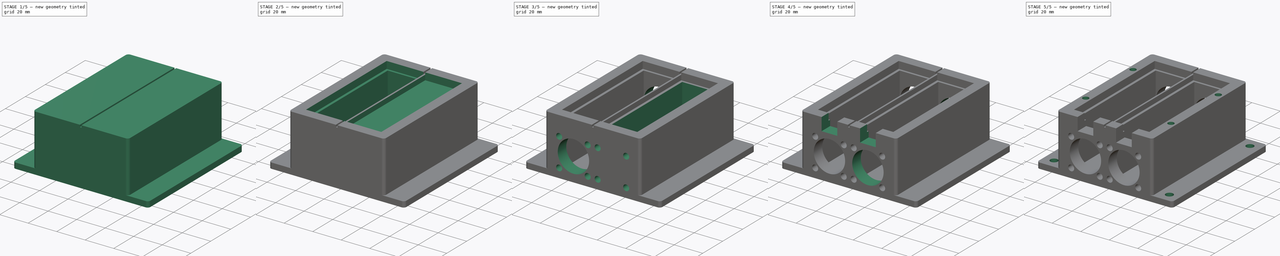
[diagram: build sequence overview — one tinted view per stage of 5, left to right]
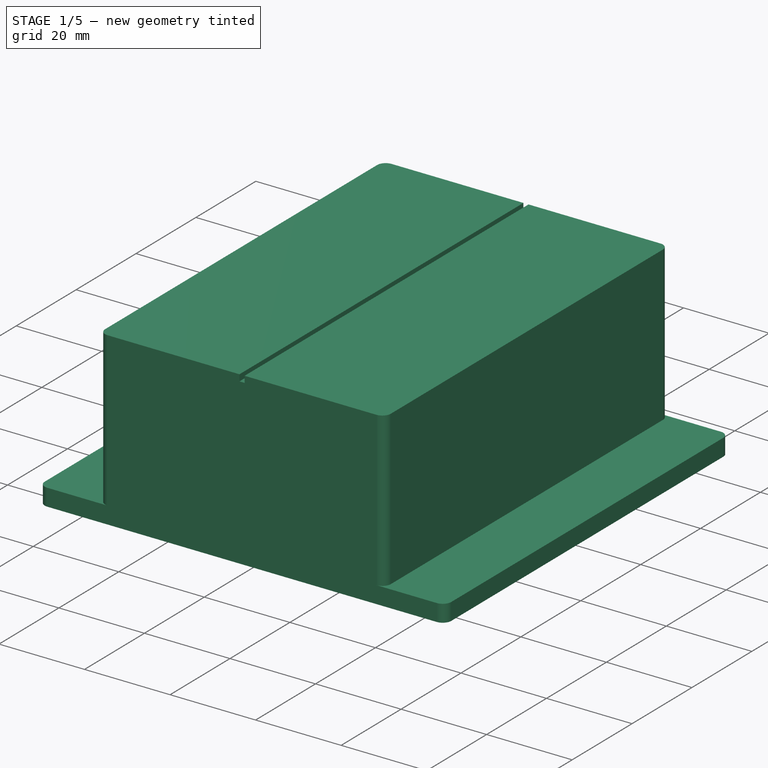
[diagram: stage 1 of 5 — iso view after this stage's code; geometry added in this stage tinted green]
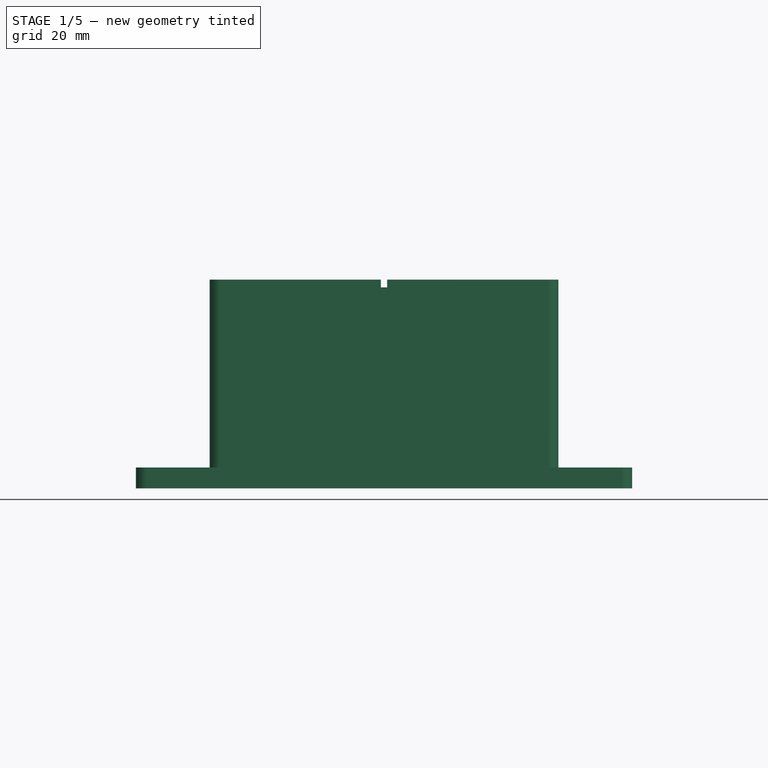
[diagram: stage 1 of 5 — front view after this stage's code; geometry added in this stage tinted green]
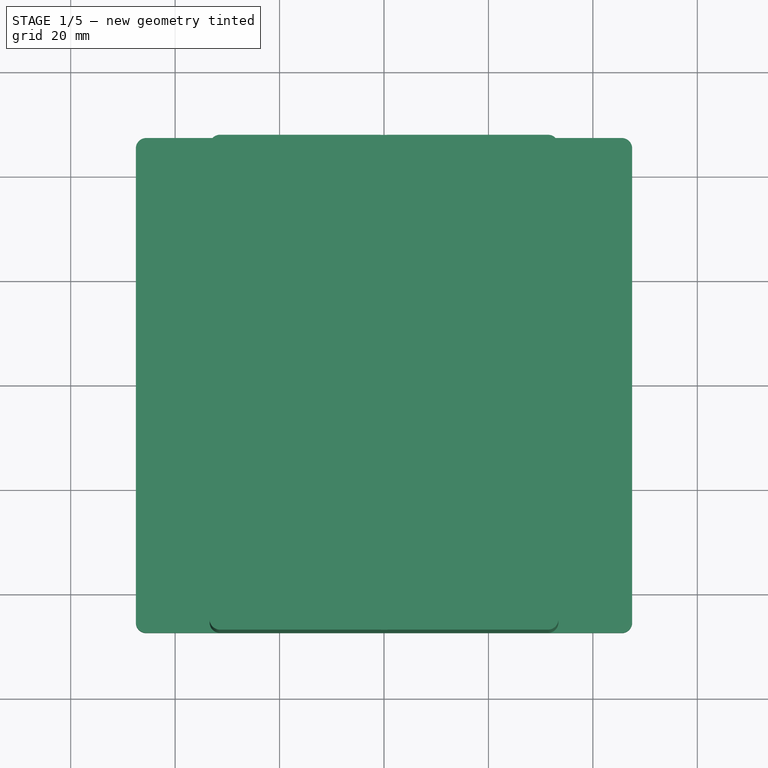
[diagram: stage 1 of 5 — top view after this stage's code; geometry added in this stage tinted green]
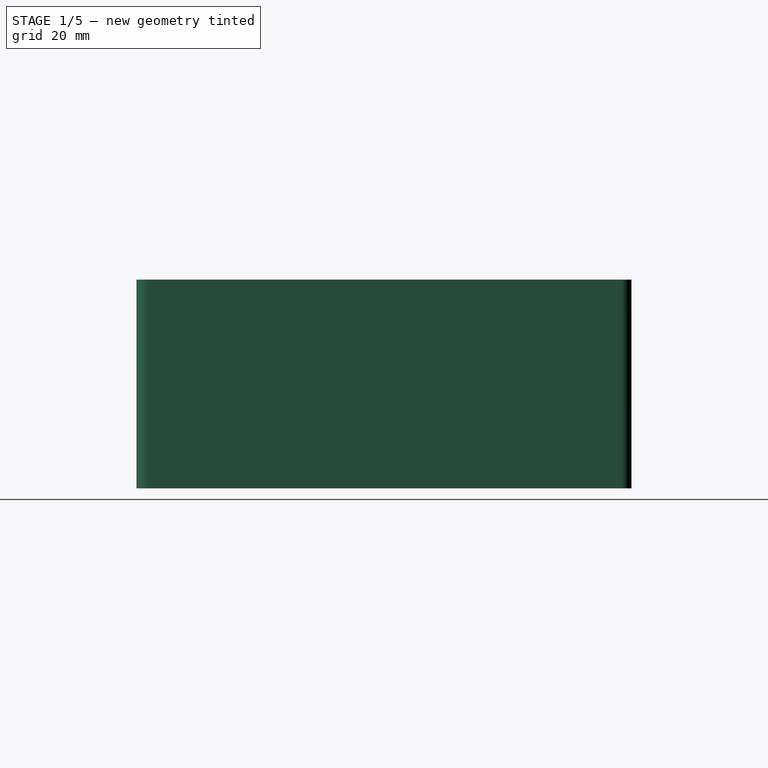
[diagram: stage 1 of 5 — right view after this stage's code; geometry added in this stage tinted green]
FCSTD DOCUMENT  (FreeCAD 1.0R39285 (Git))
Label: pupae_thermal_device_frame
License: All rights reserved
LicenseURL: https://en.wikipedia.org/wiki/All_rights_reserved
objects: Sketcher::SketchObject×10, PartDesign::Pocket×8, PartDesign::Mirrored×7, PartDesign::Plane×3, PartDesign::Pad×2, Spreadsheet::Sheet×1, PartDesign::MultiTransform×1, PartDesign::Body×1
note: 70 computed .brp shape members not serialized (recipe doc carries the construction recipe); baked Part::Feature solids carry a one-line shape summary decoded from their .brp

FEATURE [Spreadsheet::Sheet] Spreadsheet
  cells = A2='Design Parameters; A3='wall_thickness; B3(wall_thickness)==7 mm; A4='floor_thickness; B4(floor_thickness)==4 mm; A6='thermal_plate_length; B6(thermal_plate_length)==80 mm; A7='thermal_plate_width; B7(thermal_plate_width)==25 mm; A8='thermal_plate_height; B8(thermal_plate_height)==5 mm; A9='thermal_plate_side_margin; B9(thermal_plate_side_margin)==0.4 mm; A10='thermal_plate_pocket_length; B10(thermal_plate_pocket_length)==thermal_plate_length + 2 * thermal_plate_side_margin; A11='thermal_plate_pocket_width; B11(thermal_plate_pocket_width)==thermal_plate_width + 2 * thermal_plate_side_margin; A12='thermal_plate_pocket_depth; B12(thermal_plate_pocket_depth)==1 * thermal_plate_height; A14='peltier_and_heatsink_length; B14(peltier_and_heatsink_length)==76.5 mm; A15='peltier_and_heatsink_width; B15(peltier_and_heatsink_width)==21 mm; A16='peltier_and_heatsink_height; B16(peltier_and_heatsink_height)==14 mm; A17='peltier_and_heatsink_side_margin; B17(peltier_and_heatsink_side_margin)==0.6 mm; A18='peltier_cable_cutout_width; B18(peltier_cable_cutout_width)==12 mm; A19='peltier_height; B19(peltier_height)==4 mm; A21='pupae_channel_width; B21(pupae_channel_width)==1.2 mm; A22='pupae_channel_depth; B22(pupae_channel_depth)==1.5 mm; A23='pupae_channel_pocket_depth; B23(pupae_channel_pocket_depth)==pupae_channel_depth + thermal_plate_pocket_depth - thermal_plate_height; A25='fan_outer_width; B25(fan_outer_width)==25 mm; A26='fan_outer_height; B26(fan_outer_height)==25 mm; A27='fan_cable_clearance_height_margin; B27(fan_cable_clearance_height_margin)==2 mm; A28='fan_cable_clearance_width; B28(fan_cable_clearance_width)==11 mm; A29='fan_mount_hole_widthwise_spacing; B29(fan_mount_hole_widthwise_spacing)==20 mm; A30='fan_mount_hole_heightwise_spacing; B30(fan_mount_hole_heightwise_spacing)==20 mm; A31='fan_mount_hole_diameter; B31(fan_mount_hole_diameter)==3 mm; A32='fan_flow_hole_diameter; B32(fan_flow_hole_diameter)==22 mm; A33='fan_offset_from_top; B33(fan_offset_from_top)==thermal_plate_pocket_depth + peltier_height + fan_cable_clearance_height_margin; A34='fan_thread_insert_hole_diameter; B34(fan_thread_insert_hole_diameter)==0.165 in; A35='fan_cable_clearance_pocket_width; B35(fan_cable_clearance_pocket_width)==fan_cable_clearance_width; A36='fan_cable_clearance_pocket_depth; B36(fan_cable_clearance_pocket_depth)==thermal_plate_pocket_depth + peltier_height; A38='base_outside_length; B38(base_outside_length)==max(thermal_plate_pocket_length; peltier_and_heatsink_length) + 2 * wall_thickness; A39='base_outside_width; B39(base_outside_width)==2 * wall_thickness + 2 * max(thermal_plate_pocket_width; peltier_and_heatsink_width) + pupae_channel_width; A40='base_outside_height; B40(base_outside_height)==thermal_plate_pocket_depth + peltier_height + fan_cable_clearance_height_margin + fan_outer_height + floor_thickness; A41='base_outside_corner_fillet_radius; B41(base_outside_corner_fillet_radius)==2 mm; A43='thermal_plate_pocket_bottom_datum_plane_offset; B43(thermal_plate_pocket_bottom_datum_plane_offset)==base_outside_height - thermal_plate_pocket_depth; A45='peltier_and_heatsink_pocket_length; B45(peltier_and_heatsink_pocket_length)==peltier_and_heatsink_length + 2 * peltier_and_heatsink_side_margin; A46='peltier_and_heatsink_pocket_width; B46(peltier_and_heatsink_pocket_width)==peltier_and_heatsink_width + 2 * peltier_and_heatsink_side_margin; A47='peltier_and_heatsink_pocket_depth; B47(peltier_and_heatsink_pocket_depth)==base_outside_height - thermal_plate_pocket_depth - floor_thickness; A49='front_datumplate_offset; B49(front_datumplate_offset)==0.5 * base_outside_length; A51='base_mount_screw_washer_diameter; B51(base_mount_screw_washer_diameter)==0.438 in; A52='base_mount_screw_washer_margin; B52(base_mount_screw_washer_margin)==1.5 mm; A53='base_mount_flange_width; B53(base_mount_flange_width)==2 * base_mount_screw_washer_diameter + 4 * base_mount_screw_washer_margin + base_outside_width; A54='base_mount_flange_length; B54(base_mount_flange_length)==base_outside_length; A55='base_mount_flange_thickness; B55(base_mount_flange_thickness)==floor_thickness; A56='base_mount_flange_fillet_radius; B56(base_mount_flange_fillet_radius)==2 mm; A57='base_mount_flange_hole_lengthwise_separation; B57(base_mount_flange_hole_lengthwise_separation)==base_mount_flange_length - (base_mount_screw_washer_diameter + 2 * base_mount_screw_washer_margin); A58='base_mount_flange_hole_widthwise_separation; B58(base_mount_flange_hole_widthwise_separation)==base_mount_flange_width - (base_mount_screw_washer_diameter + 2 * base_mount_screw_washer_margin); A59='base_mount_flange_hole_diameter; B59(base_mount_flange_hole_diameter)==0.205 in; A61='top_mount_hole_insert_diameter; B61(top_mount_hole_insert_diameter)==0.165 in; A62='top_mount_hole_insert_depth; B62(top_mount_hole_insert_depth)==7 mm
FEATURE [Sketcher::SketchObject] Sketch  label="BaseSketch"
  ArcFitTolerance = 1e-06
  AttachmentSupport = -> [XY_Plane]
  FullyConstrained = true
  MakeInternals = false
  MapMode = 5
  expr: Constraints[19] = Spreadsheet.base_outside_corner_fillet_radius
  expr: Constraints[21] = Spreadsheet.base_outside_length
  expr: Constraints[22] = Spreadsheet.base_outside_width
  sketch-geometry (10):
    g0: LineSegment StartX=-33.4 StartY=45.4 StartZ=0 EndX=-33.4 EndY=-45.4 EndZ=0
    g1: LineSegment StartX=-31.4 StartY=-47.4 StartZ=0 EndX=31.4 EndY=-47.4 EndZ=0
    g2: LineSegment StartX=33.4 StartY=-45.4 StartZ=0 EndX=33.4 EndY=45.4 EndZ=0
    g3: LineSegment StartX=31.4 StartY=47.4 StartZ=0 EndX=-31.4 EndY=47.4 EndZ=0
    g4: ArcOfCircle CenterX=-31.4 CenterY=45.4 CenterZ=0 NormalX=0 NormalY=0 NormalZ=1 AngleXU=0 Radius=2 StartAngle=1.5708 EndAngle=3.14159
    g5: ArcOfCircle CenterX=-31.4 CenterY=-45.4 CenterZ=0 NormalX=0 NormalY=0 NormalZ=1 AngleXU=0 Radius=2 StartAngle=3.14159 EndAngle=4.71239
    g6: ArcOfCircle CenterX=31.4 CenterY=-45.4 CenterZ=0 NormalX=0 NormalY=0 NormalZ=1 AngleXU=0 Radius=2 StartAngle=4.71239 EndAngle=6.28319
    g7: ArcOfCircle CenterX=31.4 CenterY=45.4 CenterZ=0 NormalX=0 NormalY=0 NormalZ=1 AngleXU=0 Radius=2 StartAngle=9.45e-14 EndAngle=1.5708
    g8: GeomPoint [constr] X=-33.4 Y=47.4 Z=0
    g9: GeomPoint [constr] X=33.4 Y=-47.4 Z=0
  constraints (23):
    c: Tangent(g0,g4) = -1.5708
    c: Tangent(g0,g5) = -1.5708
    c: Tangent(g1,g5) = -1.5708
    c: Tangent(g1,g6) = -1.5708
    c: Tangent(g2,g6) = -1.5708
    c: Tangent(g2,g7) = -1.5708
    c: Tangent(g3,g7) = -1.5708
    c: Tangent(g3,g4) = -1.5708
    c: Vertical(g0)
    c: Vertical(g2)
    c: Horizontal(g1)
    c: Horizontal(g3)
    c: Equal(g4,g5)
    c: Equal(g5,g6)
    c: Equal(g6,g7)
    c: PointOnObject(g8,g0)
    c: PointOnObject(g8,g3)
    c: PointOnObject(g9,g1)
    c: PointOnObject(g9,g2)
    c: Radius(g5) = 2
    c: Symmetric(g4,g6,g-1)
    c: DistanceY(g1,g3) = 94.8
    c: DistanceX(g0,g2) = 66.8
FEATURE [PartDesign::Pad] Pad  label="BasePad"
  Direction = (0,0,1)
  Length = 40
  Length2 = 10
  Profile = -> Sketch
  ReferenceAxis = -> Sketch [N_Axis]
  Refine = true
  Suppressed = false
  Type = 0
  expr: Length = Spreadsheet.base_outside_height
FEATURE [PartDesign::Plane] DatumPlane  label="TopDatumPlane"
  AttachmentOffset = pos=(0,0,40) rot=(0,0,1;0rad)
  AttachmentSupport = -> [XY_Plane]
  Length = 114.035
  MapMode = 5
  Placement = pos=(0,0,40) rot=(0,0,1;0rad)
  ResizeMode = 0
  Width = 113.785
  expr: .AttachmentOffset.Base.z = Spreadsheet.base_outside_height
FEATURE [Sketcher::SketchObject] Sketch002  label="PupaeChannelSketch"
  ArcFitTolerance = 1e-06
  AttachmentSupport = -> [DatumPlane]
  FullyConstrained = true
  MakeInternals = false
  MapMode = 5
  Placement = pos=(0,0,40) rot=(0,0,1;0rad)
  expr: Constraints[10] = Spreadsheet.pupae_channel_width
  expr: Constraints[11] = Spreadsheet.base_outside_length
  sketch-geometry (5):
    g0: LineSegment StartX=-0.6 StartY=47.4 StartZ=0 EndX=-0.6 EndY=-47.4 EndZ=0
    g1: LineSegment StartX=-0.6 StartY=-47.4 StartZ=0 EndX=0.6 EndY=-47.4 EndZ=0
    g2: LineSegment StartX=0.6 StartY=-47.4 StartZ=0 EndX=0.6 EndY=47.4 EndZ=0
    g3: LineSegment StartX=0.6 StartY=47.4 StartZ=0 EndX=-0.6 EndY=47.4 EndZ=0
    g4: GeomPoint [constr] X=0 Y=0 Z=0
  constraints (12):
    c: Coincident(g0,g1)
    c: Coincident(g1,g2)
    c: Coincident(g2,g3)
    c: Coincident(g3,g0)
    c: Vertical(g0)
    c: Vertical(g2)
    c: Horizontal(g1)
    c: Horizontal(g3)
    c: Symmetric(g2,g0,g4)
    c: Coincident(g4,g-1)
    c: DistanceX(g1,g1) = 1.2
    c: DistanceY(g2,g2) = 94.8
FEATURE [Sketcher::SketchObject] Sketch003  label="ThermalPlatePocketSketch"
  ArcFitTolerance = 1e-06
  AttachmentSupport = -> [DatumPlane]
  FullyConstrained = true
  MakeInternals = false
  MapMode = 5
  Placement = pos=(0,0,40) rot=(0,0,1;0rad)
  expr: Constraints[12] = Spreadsheet.thermal_plate_pocket_width
  expr: Constraints[13] = Spreadsheet.thermal_plate_pocket_length
  expr: Constraints[2] = Spreadsheet.pupae_channel_width
  sketch-geometry (5):
    g0: LineSegment [constr] StartX=-0.6 StartY=0 StartZ=0 EndX=0.6 EndY=0 EndZ=0
    g1: LineSegment StartX=-26.4 StartY=40.4 StartZ=0 EndX=-26.4 EndY=-40.4 EndZ=0
    g2: LineSegment StartX=-26.4 StartY=-40.4 StartZ=0 EndX=-0.6 EndY=-40.4 EndZ=0
    g3: LineSegment StartX=-0.6 StartY=-40.4 StartZ=0 EndX=-0.6 EndY=40.4 EndZ=0
    g4: LineSegment StartX=-0.6 StartY=40.4 StartZ=0 EndX=-26.4 EndY=40.4 EndZ=0
  constraints (14):
    c: Symmetric(g0,g0,g-1)
    c: Horizontal(g0)
    c: Distance(g0,g0) = 1.2
    c: Coincident(g1,g2)
    c: Coincident(g2,g3)
    c: Coincident(g3,g4)
    c: Coincident(g4,g1)
    c: Vertical(g1)
    c: Vertical(g3)
    c: Horizontal(g2)
    c: Horizontal(g4)
    c: Symmetric(g3,g2,g0)
    c: Distance(g4,g4) = 25.8
    c: DistanceY(g1,g1) = 80.8
FEATURE [PartDesign::Plane] DatumPlane001  label="ThermPlatePocketBottomDatumPlane"
  AttachmentOffset = pos=(0,0,35) rot=(0,0,1;0rad)
  AttachmentSupport = -> [XY_Plane]
  Length = 114.035
  MapMode = 5
  Placement = pos=(0,0,35) rot=(0,0,1;0rad)
  ResizeMode = 0
  Width = 113.785
  expr: .AttachmentOffset.Base.z = Spreadsheet.thermal_plate_pocket_bottom_datum_plane_offset
FEATURE [Sketcher::SketchObject] Sketch004  label="PeltierAndHeatSinkPocketSketch"
  ArcFitTolerance = 1e-06
  AttachmentSupport = -> [DatumPlane001]
  FullyConstrained = true
  MakeInternals = false
  MapMode = 5
  Placement = pos=(0,0,35) rot=(0,0,1;0rad)
  expr: Constraints[13] = Spreadsheet.thermal_plate_pocket_width
  expr: Constraints[14] = Spreadsheet.thermal_plate_pocket_length
  expr: Constraints[25] = Spreadsheet.peltier_and_heatsink_pocket_width
  expr: Constraints[26] = Spreadsheet.peltier_and_heatsink_pocket_length
  expr: Constraints[2] = Spreadsheet.pupae_channel_width
  sketch-geometry (11):
    g0: LineSegment [constr] StartX=-0.6 StartY=0 StartZ=0 EndX=0.6 EndY=0 EndZ=0
    g1: LineSegment [constr] StartX=-26.4 StartY=40.4 StartZ=0 EndX=-26.4 EndY=-40.4 EndZ=0
    g2: LineSegment [constr] StartX=-26.4 StartY=-40.4 StartZ=0 EndX=-0.6 EndY=-40.4 EndZ=0
    g3: LineSegment [constr] StartX=-0.6 StartY=-40.4 StartZ=0 EndX=-0.6 EndY=40.4 EndZ=0
    g4: LineSegment [constr] StartX=-0.6 StartY=40.4 StartZ=0 EndX=-26.4 EndY=40.4 EndZ=0
    g5: GeomPoint [constr] X=-13.5 Y=3.1e-15 Z=0
    g6: LineSegment StartX=-24.6 StartY=38.85 StartZ=0 EndX=-24.6 EndY=-38.85 EndZ=0
    g7: LineSegment StartX=-24.6 StartY=-38.85 StartZ=0 EndX=-2.4 EndY=-38.85 EndZ=0
    g8: LineSegment StartX=-2.4 StartY=-38.85 StartZ=0 EndX=-2.4 EndY=38.85 EndZ=0
    g9: LineSegment StartX=-2.4 StartY=38.85 StartZ=0 EndX=-24.6 EndY=38.85 EndZ=0
    g10: GeomPoint [constr] X=-13.5 Y=3.1e-15 Z=0
  constraints (27):
    c: Symmetric(g0,g0,g-1)
    c: Horizontal(g0)
    c: DistanceX(g0,g0) = 1.2
    c: Coincident(g1,g2)
    c: Coincident(g2,g3)
    c: Coincident(g3,g4)
    c: Coincident(g4,g1)
    c: Vertical(g1)
    c: Vertical(g3)
    c: Horizontal(g2)
    c: Horizontal(g4)
    c: Symmetric(g3,g1,g5)
    c: Symmetric(g3,g2,g0)
    c: DistanceX(g2,g2) = 25.8
    c: DistanceY(g1,g1) = 80.8
    c: Coincident(g6,g7)
    c: Coincident(g7,g8)
    c: Coincident(g8,g9)
    c: Coincident(g9,g6)
    c: Vertical(g6)
    c: Vertical(g8)
    c: Horizontal(g7)
    c: Horizontal(g9)
    c: Symmetric(g8,g6,g10)
    c: Coincident(g10,g5)
    c: DistanceX(g7,g7) = 22.2
    c: DistanceY(g6,g6) = 77.7
FEATURE [PartDesign::Plane] DatumPlane002  label="FrontDatumPlane"
  AttachmentOffset = pos=(0,0,47.4) rot=(0,0,1;0rad)
  AttachmentSupport = -> [XZ_Plane]
  Length = 110.771
  MapMode = 5
  Placement = pos=(0,-47.4,1.05e-14) rot=(1,0,0;1.5708rad)
  ResizeMode = 0
  Width = 80.7204
  expr: .AttachmentOffset.Base.z = Spreadsheet.front_datumplate_offset
FEATURE [Sketcher::SketchObject] Sketch005  label="FanMountSketch"
  ArcFitTolerance = 1e-06
  AttachmentSupport = -> [DatumPlane002]
  FullyConstrained = true
  MakeInternals = false
  MapMode = 5
  Placement = pos=(0,-47.4,1.05e-14) rot=(1,0,0;1.5708rad)
  expr: Constraints[22] = Spreadsheet.fan_outer_width
  expr: Constraints[23] = Spreadsheet.fan_outer_height
  expr: Constraints[2] = Spreadsheet.base_outside_height
  expr: Constraints[34] = Spreadsheet.fan_mount_hole_widthwise_spacing
  expr: Constraints[35] = Spreadsheet.fan_mount_hole_heightwise_spacing
  expr: Constraints[43] = Spreadsheet.fan_thread_insert_hole_diameter
  expr: Constraints[4] = Spreadsheet.fan_offset_from_top
  expr: Constraints[6] = Spreadsheet.pupae_channel_width
  expr: Constraints[9] = Spreadsheet.thermal_plate_pocket_width
  sketch-geometry (19):
    g0: LineSegment [constr] StartX=0 StartY=40 StartZ=0 EndX=0 EndY=0 EndZ=0
    g1: GeomPoint [constr] X=0 Y=29 Z=0
    g2: LineSegment [constr] StartX=-0.6 StartY=29 StartZ=0 EndX=0.6 EndY=29 EndZ=0
    g3: LineSegment [constr] StartX=-26.4 StartY=29 StartZ=0 EndX=-0.6 EndY=29 EndZ=0
    g4: GeomPoint [constr] X=-13.5 Y=29 Z=0
    g5: LineSegment [constr] StartX=-26 StartY=29 StartZ=0 EndX=-26 EndY=4 EndZ=0
    g6: LineSegment [constr] StartX=-26 StartY=4 StartZ=0 EndX=-1 EndY=4 EndZ=0
    g7: LineSegment [constr] StartX=-1 StartY=4 StartZ=0 EndX=-1 EndY=29 EndZ=0
    g8: LineSegment [constr] StartX=-1 StartY=29 StartZ=0 EndX=-26 EndY=29 EndZ=0
    g9: GeomPoint [constr] X=-13.5 Y=16.5 Z=0
    g10: LineSegment [constr] StartX=-23.5 StartY=26.5 StartZ=0 EndX=-23.5 EndY=6.5 EndZ=0
    g11: LineSegment [constr] StartX=-23.5 StartY=6.5 StartZ=0 EndX=-3.5 EndY=6.5 EndZ=0
    g12: LineSegment [constr] StartX=-3.5 StartY=6.5 StartZ=0 EndX=-3.5 EndY=26.5 EndZ=0
    g13: LineSegment [constr] StartX=-3.5 StartY=26.5 StartZ=0 EndX=-23.5 EndY=26.5 EndZ=0
    g14: GeomPoint [constr] X=-13.5 Y=16.5 Z=0
    g15: Circle CenterX=-23.5 CenterY=26.5 CenterZ=0 NormalX=0 NormalY=0 NormalZ=1 AngleXU=0 Radius=2.0955
    g16: Circle CenterX=-3.5 CenterY=26.5 CenterZ=0 NormalX=0 NormalY=0 NormalZ=1 AngleXU=0 Radius=2.0955
    g17: Circle CenterX=-23.5 CenterY=6.5 CenterZ=0 NormalX=0 NormalY=0 NormalZ=1 AngleXU=0 Radius=2.0955
    g18: Circle CenterX=-3.5 CenterY=6.5 CenterZ=0 NormalX=0 NormalY=0 NormalZ=1 AngleXU=0 Radius=2.0955
  constraints (44):
    c: Vertical(g0)
    c: Coincident(g0,g-1)
    c: DistanceY(g0,g0) = 40
    c: PointOnObject(g1,g0)
    c: Distance(g0,g1) = 11
    c: Symmetric(g2,g2,g0)
    c: DistanceX(g2,g2) = 1.2
    c: Horizontal(g3)
    c: Coincident(g3,g2)
    c: DistanceX(g3,g3) = 25.8
    c: Symmetric(g2,g3,g4)
    c: Coincident(g5,g6)
    c: Coincident(g6,g7)
    c: Coincident(g7,g8)
    c: Coincident(g8,g5)
    c: Vertical(g5)
    c: Vertical(g7)
    c: Horizontal(g6)
    c: Horizontal(g8)
    c: Symmetric(g7,g5,g9)
    c: Symmetric(g5,g7,g4)
    c: PointOnObject(g1,g2)
    c: DistanceX(g6,g6) = 25
    c: DistanceY(g5,g5) = 25
    c: Coincident(g10,g11)
    c: Coincident(g11,g12)
    c: Coincident(g12,g13)
    c: Coincident(g13,g10)
    c: Vertical(g10)
    c: Vertical(g12)
    c: Horizontal(g11)
    c: Horizontal(g13)
    c: Symmetric(g12,g10,g14)
    c: Coincident(g14,g9)
    c: DistanceX(g11,g11) = 20
    c: DistanceY(g10,g10) = 20
    c: Coincident(g15,g10)
    c: Coincident(g16,g12)
    c: Coincident(g17,g10)
    c: Coincident(g18,g11)
    c: Equal(g17,g18)
    c: Equal(g18,g15)
    c: Equal(g15,g16)
    c: Diameter(g16) = 4.191
FEATURE [Sketcher::SketchObject] Sketch006  label="FanFlowHoleSketch"
  ArcFitTolerance = 1e-06
  AttachmentSupport = -> [DatumPlane002]
  FullyConstrained = true
  MakeInternals = false
  MapMode = 5
  Placement = pos=(0,-47.4,1.05e-14) rot=(1,0,0;1.5708rad)
  expr: Constraints[10] = Spreadsheet.thermal_plate_pocket_width
  expr: Constraints[22] = Spreadsheet.fan_outer_height
  expr: Constraints[23] = Spreadsheet.fan_outer_width
  expr: Constraints[25] = Spreadsheet.fan_flow_hole_diameter
  expr: Constraints[2] = Spreadsheet.base_outside_height
  expr: Constraints[4] = Spreadsheet.fan_offset_from_top
  expr: Constraints[7] = Spreadsheet.pupae_channel_width
  sketch-geometry (11):
    g0: LineSegment [constr] StartX=0 StartY=40 StartZ=0 EndX=0 EndY=0 EndZ=0
    g1: GeomPoint [constr] X=0 Y=29 Z=0
    g2: LineSegment [constr] StartX=0.6 StartY=29 StartZ=0 EndX=-0.6 EndY=29 EndZ=0
    g3: LineSegment [constr] StartX=-26.4 StartY=29 StartZ=0 EndX=-0.6 EndY=29 EndZ=0
    g4: GeomPoint [constr] X=-13.5 Y=29 Z=0
    g5: LineSegment [constr] StartX=-26 StartY=29 StartZ=0 EndX=-26 EndY=4 EndZ=0
    g6: LineSegment [constr] StartX=-26 StartY=4 StartZ=0 EndX=-1 EndY=4 EndZ=0
    g7: LineSegment [constr] StartX=-1 StartY=4 StartZ=0 EndX=-1 EndY=29 EndZ=0
    g8: LineSegment [constr] StartX=-1 StartY=29 StartZ=0 EndX=-26 EndY=29 EndZ=0
    g9: GeomPoint [constr] X=-13.5 Y=16.5 Z=0
    g10: Circle CenterX=-13.5 CenterY=16.5 CenterZ=0 NormalX=0 NormalY=0 NormalZ=1 AngleXU=0 Radius=11
  constraints (26):
    c: Vertical(g0)
    c: Coincident(g0,g-1)
    c: DistanceY(g0,g0) = 40
    c: PointOnObject(g1,g0)
    c: Distance(g0,g1) = 11
    c: Horizontal(g2)
    c: Symmetric(g2,g2,g1)
    c: Distance(g2,g2) = 1.2
    c: Horizontal(g3)
    c: Coincident(g2,g3)
    c: DistanceX(g3,g3) = 25.8
    c: Symmetric(g3,g2,g4)
    c: Coincident(g5,g6)
    c: Coincident(g6,g7)
    c: Coincident(g7,g8)
    c: Coincident(g8,g5)
    c: Vertical(g5)
    c: Vertical(g7)
    c: Horizontal(g6)
    c: Horizontal(g8)
    c: Symmetric(g7,g5,g9)
    c: Symmetric(g5,g7,g4)
    c: DistanceY(g5,g5) = 25
    c: DistanceX(g6,g6) = 25
    c: Coincident(g10,g9)
    c: Diameter(g10) = 22
FEATURE [Sketcher::SketchObject] Sketch007  label="BaseMountFlangeSketch"
  ArcFitTolerance = 1e-06
  AttachmentSupport = -> [XY_Plane]
  FullyConstrained = true
  MakeInternals = false
  MapMode = 5
  expr: Constraints[19] = Spreadsheet.base_mount_flange_fillet_radius
  expr: Constraints[20] = Spreadsheet.base_mount_flange_width
  expr: Constraints[21] = Spreadsheet.base_mount_flange_length
  sketch-geometry (10):
    g0: LineSegment StartX=-47.5252 StartY=45.4 StartZ=0 EndX=-47.5252 EndY=-45.4 EndZ=0
    g1: LineSegment StartX=-45.5252 StartY=-47.4 StartZ=0 EndX=45.5252 EndY=-47.4 EndZ=0
    g2: LineSegment StartX=47.5252 StartY=-45.4 StartZ=0 EndX=47.5252 EndY=45.4 EndZ=0
    g3: LineSegment StartX=45.5252 StartY=47.4 StartZ=0 EndX=-45.5252 EndY=47.4 EndZ=0
    g4: ArcOfCircle CenterX=-45.5252 CenterY=45.4 CenterZ=0 NormalX=0 NormalY=0 NormalZ=1 AngleXU=0 Radius=2 StartAngle=1.5708 EndAngle=3.14159
    g5: ArcOfCircle CenterX=-45.5252 CenterY=-45.4 CenterZ=0 NormalX=0 NormalY=0 NormalZ=1 AngleXU=0 Radius=2 StartAngle=3.14159 EndAngle=4.71239
    g6: ArcOfCircle CenterX=45.5252 CenterY=-45.4 CenterZ=0 NormalX=0 NormalY=0 NormalZ=1 AngleXU=0 Radius=2 StartAngle=4.71239 EndAngle=6.28319
    g7: ArcOfCircle CenterX=45.5252 CenterY=45.4 CenterZ=0 NormalX=0 NormalY=0 NormalZ=1 AngleXU=0 Radius=2 StartAngle=9.22e-14 EndAngle=1.5708
    g8: GeomPoint [constr] X=-47.5252 Y=47.4 Z=0
    g9: GeomPoint [constr] X=47.5252 Y=-47.4 Z=0
  constraints (23):
    c: Tangent(g0,g4) = -1.5708
    c: Tangent(g0,g5) = -1.5708
    c: Tangent(g1,g5) = -1.5708
    c: Tangent(g1,g6) = -1.5708
    c: Tangent(g2,g6) = -1.5708
    c: Tangent(g2,g7) = -1.5708
    c: Tangent(g3,g7) = -1.5708
    c: Tangent(g3,g4) = -1.5708
    c: Vertical(g0)
    c: Vertical(g2)
    c: Horizontal(g1)
    c: Horizontal(g3)
    c: Equal(g4,g5)
    c: Equal(g5,g6)
    c: Equal(g6,g7)
    c: PointOnObject(g8,g0)
    c: PointOnObject(g8,g3)
    c: PointOnObject(g9,g1)
    c: PointOnObject(g9,g2)
    c: Radius(g5) = 2
    c: DistanceX(g0,g2) = 95.0504
    c: DistanceY(g1,g3) = 94.8
    c: Symmetric(g4,g6,g-1)
FEATURE [PartDesign::Pad] Pad001  label="BaseMountFlangePad"
  BaseFeature = -> Pad
  Direction = (0,0,1)
  Length = 4
  Length2 = 10
  Profile = -> Sketch007
  ReferenceAxis = -> Sketch007 [N_Axis]
  Refine = true
  Suppressed = false
  Type = 0
  expr: Length = Spreadsheet.base_mount_flange_thickness
FEATURE [PartDesign::Pocket] Pocket001  label="PupaeChannelPocket"
  BaseFeature = -> Pad001
  Direction = (0,0,-1)
  Length = 1.5
  Length2 = 5
  Profile = -> Sketch002
  ReferenceAxis = -> Sketch002 [N_Axis]
  Refine = true
  Suppressed = false
  Type = 0
  expr: Length = Spreadsheet.pupae_channel_pocket_depth
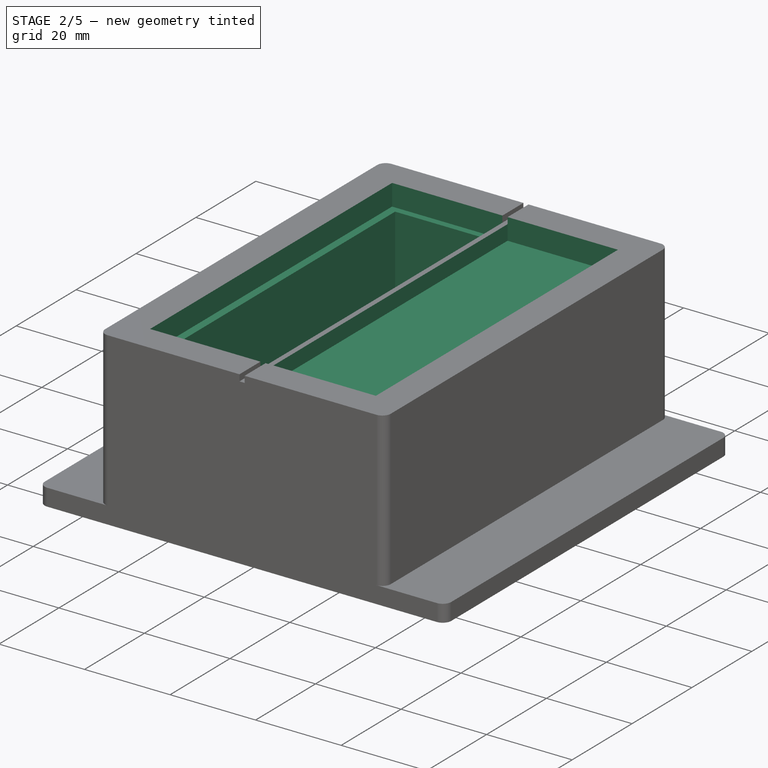
[diagram: stage 2 of 5 — iso view after this stage's code; geometry added in this stage tinted green]
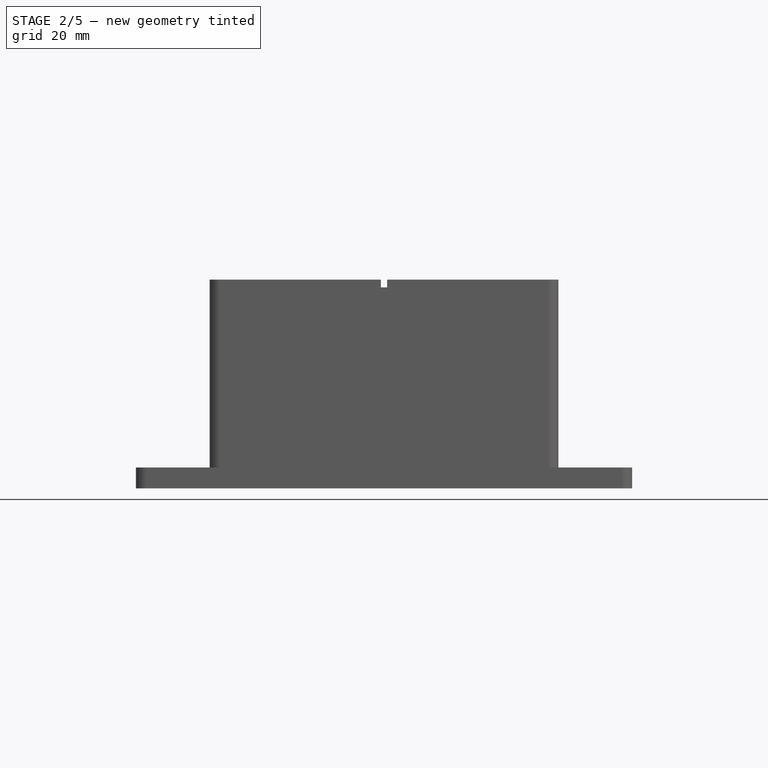
[diagram: stage 2 of 5 — front view after this stage's code; geometry added in this stage tinted green]
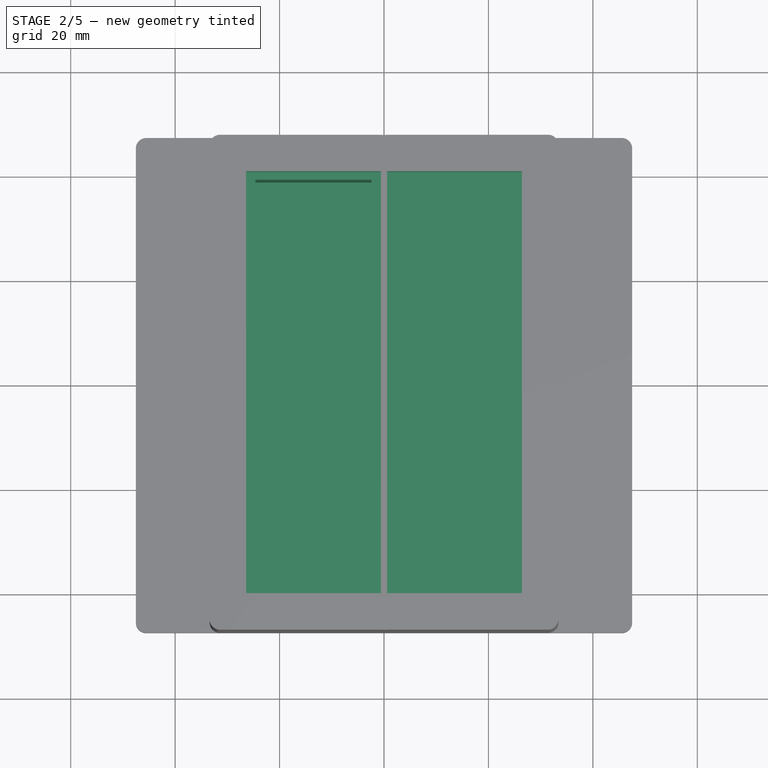
[diagram: stage 2 of 5 — top view after this stage's code; geometry added in this stage tinted green]
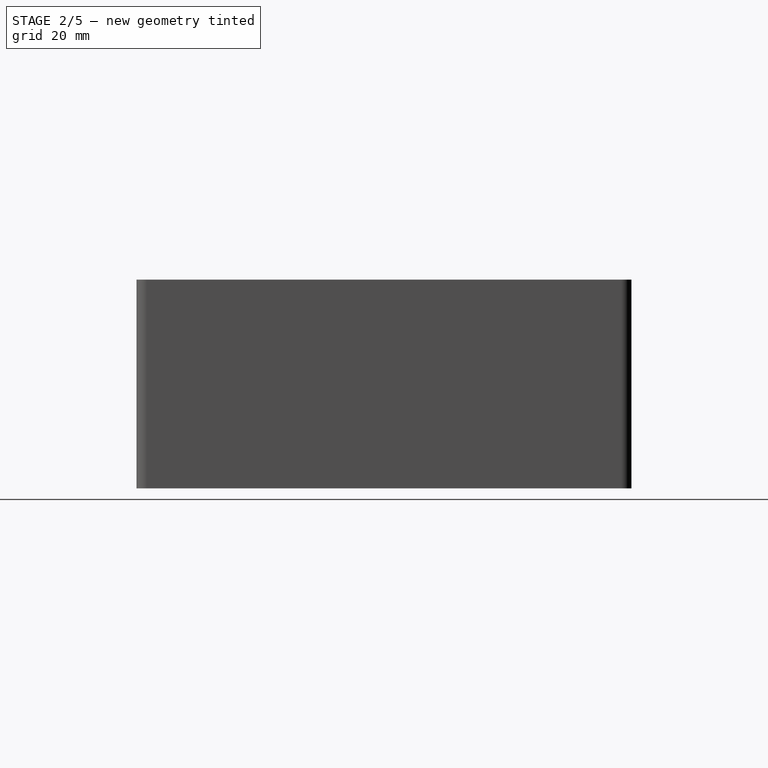
[diagram: stage 2 of 5 — right view after this stage's code; geometry added in this stage tinted green]
FEATURE [PartDesign::Pocket] Pocket  label="ThermalPlatePocket"
  BaseFeature = -> Pocket001
  Direction = (0,0,-1)
  Length = 5
  Length2 = 5
  Profile = -> Sketch003
  ReferenceAxis = -> Sketch003 [N_Axis]
  Refine = true
  Suppressed = false
  Type = 0
  expr: Length = Spreadsheet.thermal_plate_pocket_depth
FEATURE [PartDesign::Mirrored] Mirrored  label="ThermalPlatePocketMirrored"
  BaseFeature = -> Pocket
  MirrorPlane = -> Sketch003 [V_Axis]
  Originals = -> [Pocket]
  Refine = true
  Suppressed = false
  TransformMode = 0
FEATURE [PartDesign::Pocket] Pocket002  label="PeltierAndHeatsinkPocket"
  BaseFeature = -> Mirrored
  Direction = (0,0,-1)
  Length = 31
  Length2 = 5
  Profile = -> Sketch004
  ReferenceAxis = -> Sketch004 [N_Axis]
  Refine = true
  Suppressed = false
  Type = 0
  expr: Length = Spreadsheet.peltier_and_heatsink_pocket_depth
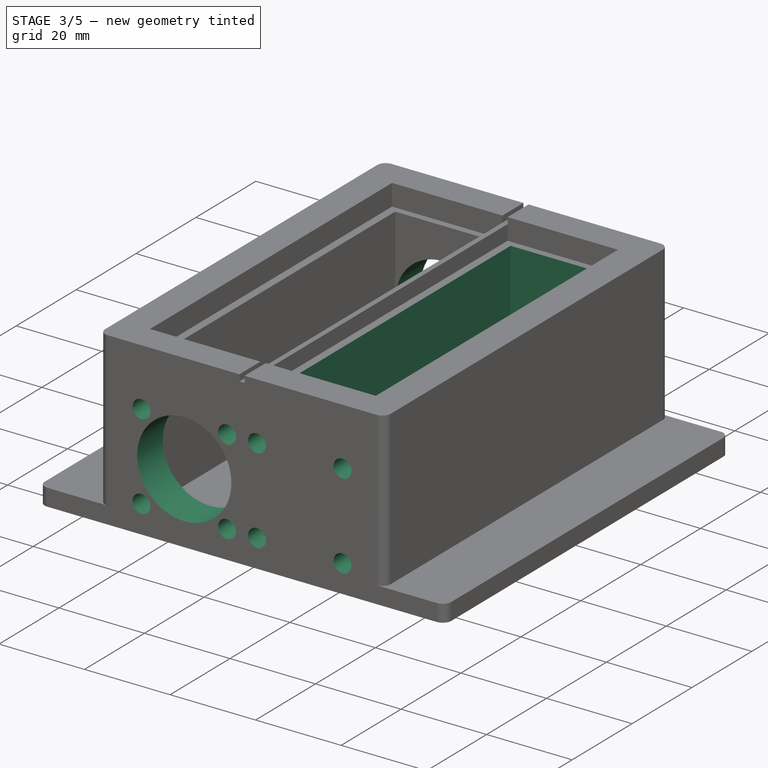
[diagram: stage 3 of 5 — iso view after this stage's code; geometry added in this stage tinted green]
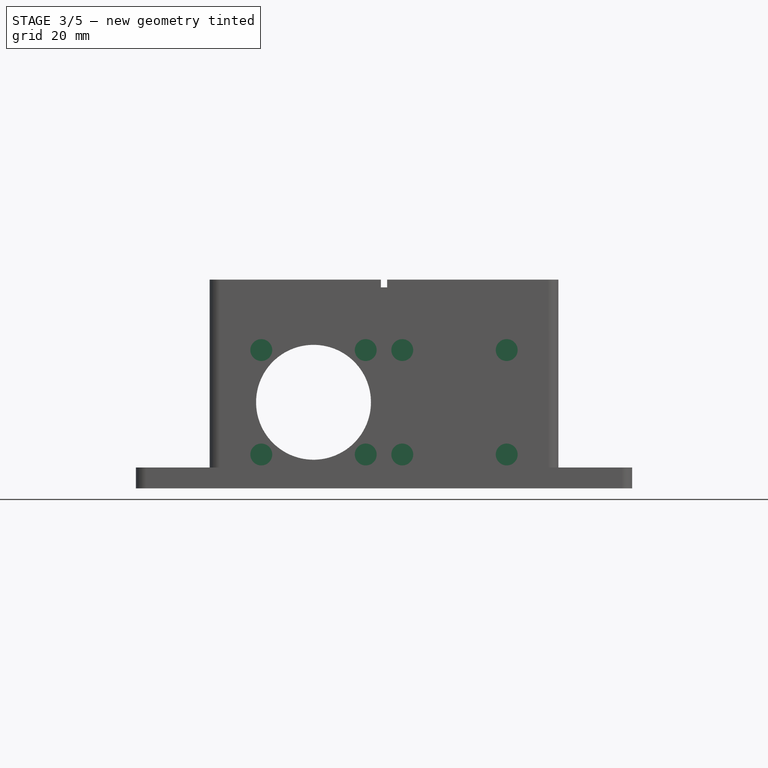
[diagram: stage 3 of 5 — front view after this stage's code; geometry added in this stage tinted green]
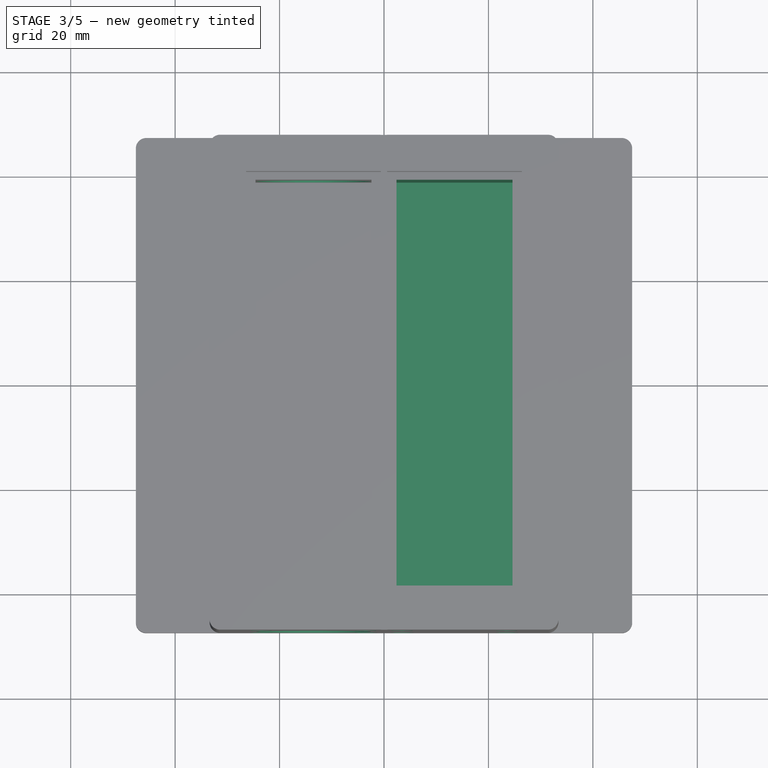
[diagram: stage 3 of 5 — top view after this stage's code; geometry added in this stage tinted green]
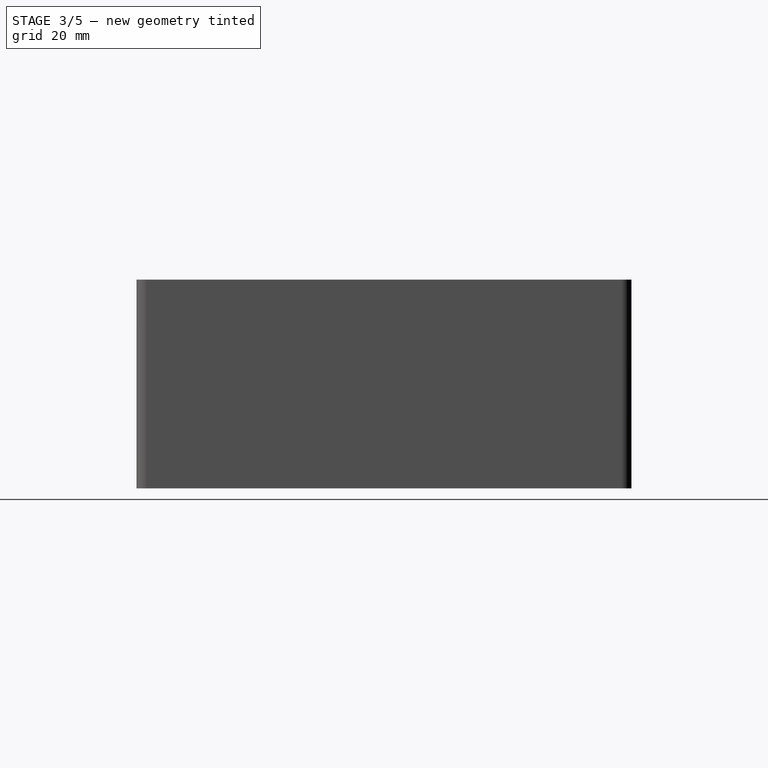
[diagram: stage 3 of 5 — right view after this stage's code; geometry added in this stage tinted green]
FEATURE [PartDesign::Mirrored] Mirrored001  label="PeltierAndHeatsinkPocketMirrored"
  BaseFeature = -> Pocket002
  MirrorPlane = -> Sketch004 [V_Axis]
  Originals = -> [Pocket002]
  Refine = true
  Suppressed = false
  TransformMode = 0
FEATURE [PartDesign::Pocket] Pocket003  label="FanMountPocket"
  BaseFeature = -> Mirrored001
  Direction = (0,1,-2e-16)
  Length = 7
  Length2 = 5
  Profile = -> Sketch005
  ReferenceAxis = -> Sketch005 [N_Axis]
  Refine = true
  Suppressed = false
  Type = 0
  expr: Length = Spreadsheet.wall_thickness
FEATURE [PartDesign::Mirrored] Mirrored002  label="FanMountPocketMirrored"
  BaseFeature = -> Pocket003
  MirrorPlane = -> Sketch005 [V_Axis]
  Originals = -> [Pocket003]
  Refine = true
  Suppressed = false
  TransformMode = 0
FEATURE [PartDesign::Pocket] Pocket004  label="FanFlowHolePocket"
  BaseFeature = -> Mirrored002
  Direction = (0,1,-2e-16)
  Length = 5
  Length2 = 5
  Profile = -> Sketch006
  ReferenceAxis = -> Sketch006 [N_Axis]
  Refine = true
  Suppressed = false
  Type = 1
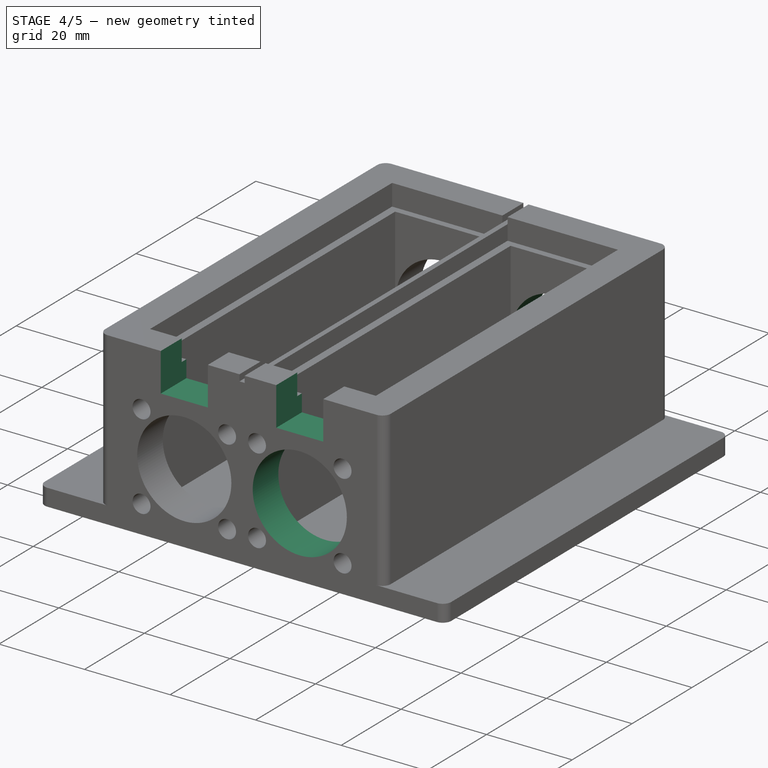
[diagram: stage 4 of 5 — iso view after this stage's code; geometry added in this stage tinted green]
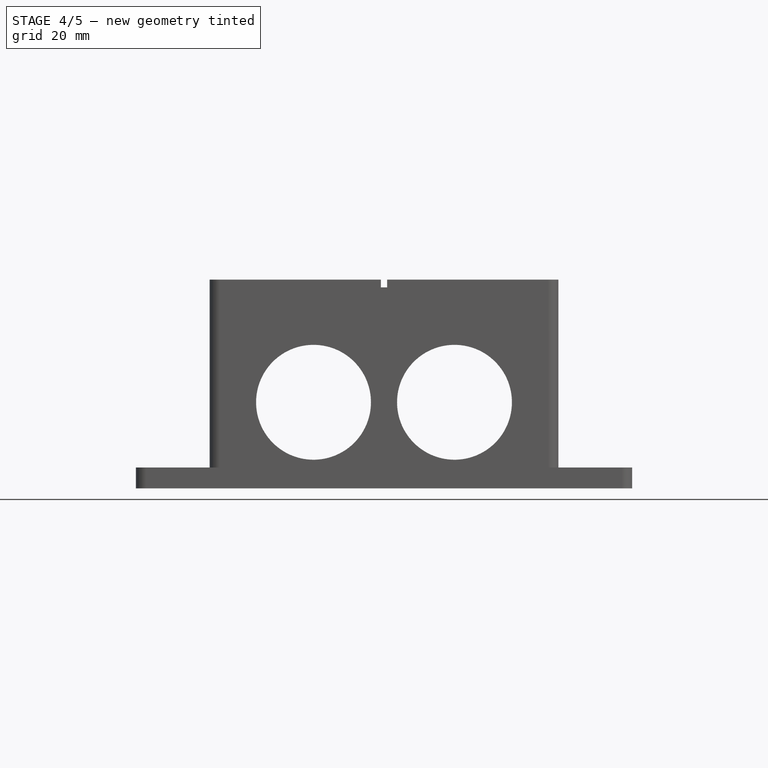
[diagram: stage 4 of 5 — front view after this stage's code; geometry added in this stage tinted green]
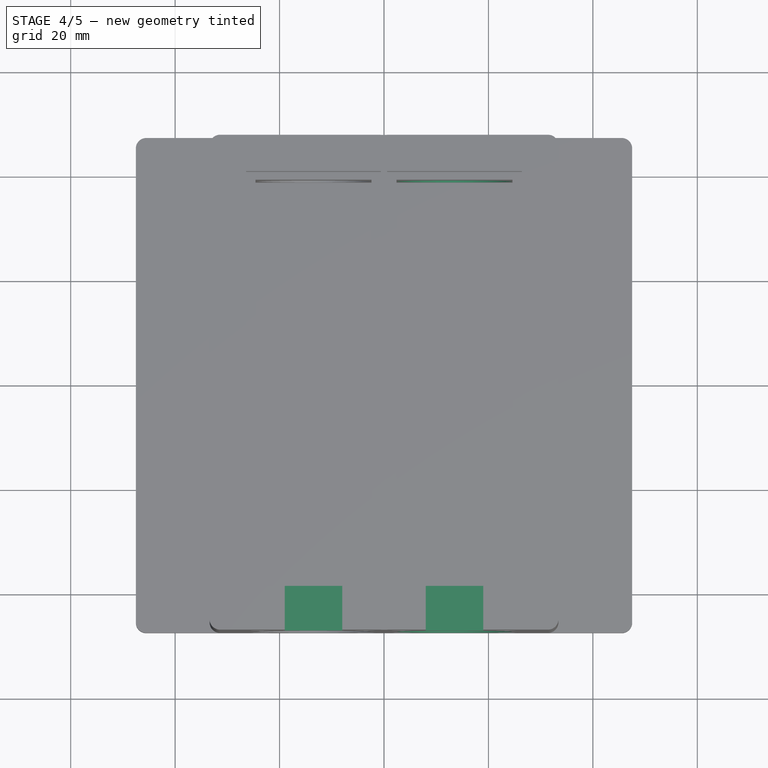
[diagram: stage 4 of 5 — top view after this stage's code; geometry added in this stage tinted green]
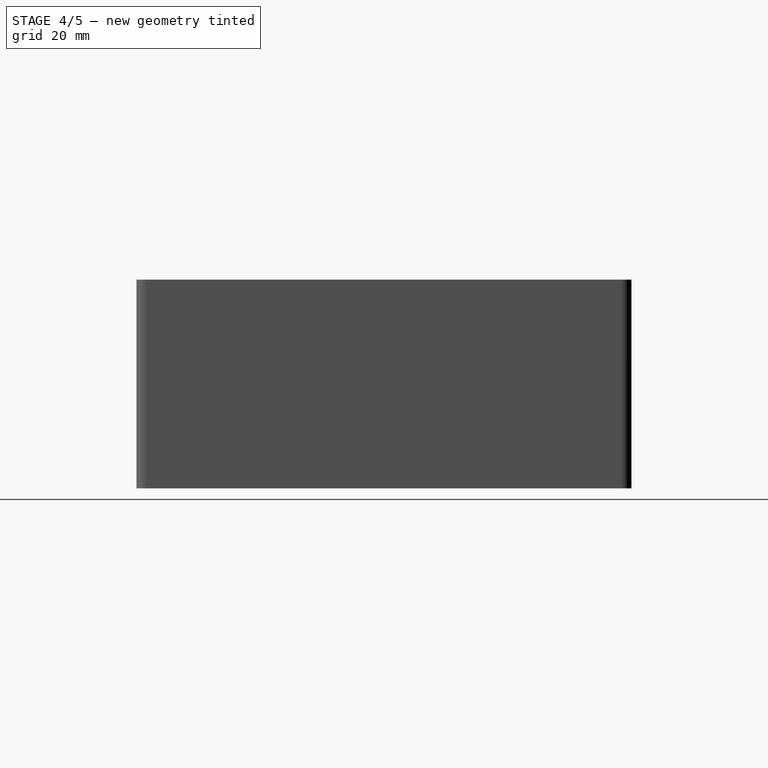
[diagram: stage 4 of 5 — right view after this stage's code; geometry added in this stage tinted green]
FEATURE [PartDesign::Mirrored] Mirrored003  label="FanFlowHolePocketMirrored"
  BaseFeature = -> Pocket004
  MirrorPlane = -> Sketch006 [V_Axis]
  Originals = -> [Pocket004]
  Refine = true
  Suppressed = false
  TransformMode = 0
FEATURE [Sketcher::SketchObject] Sketch008  label="TopMountHoleSketch"
  ArcFitTolerance = 1e-06
  AttachmentSupport = -> [DatumPlane]
  FullyConstrained = true
  MakeInternals = false
  MapMode = 5
  Placement = pos=(0,0,40) rot=(0,0,1;0rad)
  expr: Constraints[18] = Spreadsheet.wall_thickness
  expr: Constraints[32] = Spreadsheet.top_mount_hole_insert_diameter
  expr: Constraints[3] = Spreadsheet.base_outside_length
  expr: Constraints[5] = Spreadsheet.base_outside_width
  expr: Constraints[9] = Spreadsheet.wall_thickness
  sketch-geometry (17):
    g0: LineSegment [constr] StartX=-33.4 StartY=47.4 StartZ=0 EndX=33.4 EndY=47.4 EndZ=0
    g1: LineSegment [constr] StartX=0 StartY=47.4 StartZ=0 EndX=0 EndY=-47.4 EndZ=0
    g2: GeomPoint [constr] X=-16.7 Y=47.4 Z=0
    g3: LineSegment [constr] StartX=-16.7 StartY=47.4 StartZ=0 EndX=-16.7 EndY=40.4 EndZ=0
    g4: GeomPoint [constr] X=-16.7 Y=43.9 Z=0
    g5: LineSegment [constr] StartX=-33.4 StartY=47.4 StartZ=0 EndX=-33.4 EndY=-47.4 EndZ=0
    g6: GeomPoint [constr] X=-33.4 Y=-2.4e-15 Z=0
    g7: GeomPoint [constr] X=-33.4 Y=23.7 Z=0
    g8: LineSegment [constr] StartX=-33.4 StartY=23.7 StartZ=0 EndX=-26.4 EndY=23.7 EndZ=0
    g9: GeomPoint [constr] X=-29.9 Y=23.7 Z=0
    g10: Circle CenterX=-29.9 CenterY=23.7 CenterZ=0 NormalX=0 NormalY=0 NormalZ=1 AngleXU=0 Radius=2.0955
    g11: GeomPoint X=-25.05 Y=47.4 Z=0
    g12: LineSegment [constr] StartX=-25.05 StartY=47.4 StartZ=0 EndX=-25.05 EndY=40.4 EndZ=0
    g13: GeomPoint [constr] X=-25.05 Y=43.9 Z=0
    g14: GeomPoint [constr] X=-6.498 Y=47.4 Z=0
    g15: LineSegment [constr] StartX=-6.498 StartY=47.4 StartZ=0 EndX=-6.498 EndY=40.4 EndZ=0
    g16: GeomPoint [constr] X=-6.498 Y=43.9 Z=0
  constraints (33):
    c: Horizontal(g0)
    c: Vertical(g1)
    c: Symmetric(g1,g1,g-1)
    c: DistanceY(g1,g1) = 94.8
    c: Symmetric(g0,g0,g1)
    c: DistanceX(g0,g0) = 66.8
    c: Symmetric(g0,g1,g2)
    c: Coincident(g3,g2)
    c: Vertical(g3)
    c: Distance(g3,g3) = 7
    c: Symmetric(g3,g2,g4)
    c: Vertical(g5)
    c: Coincident(g5,g0)
    c: Equal(g5,g1)
    c: Symmetric(g0,g5,g6)
    c: Symmetric(g0,g6,g7)
    c: Coincident(g8,g7)
    c: Horizontal(g8)
    c: Distance(g8,g8) = 7
    c: Symmetric(g7,g8,g9)
    c: Coincident(g10,g9)
    c: Symmetric(g0,g2,g11)
    c: Coincident(g12,g11)
    c: Vertical(g12)
    c: Equal(g12,g3)
    c: Symmetric(g11,g12,g13)
    c: Coincident(g15,g14)
    c: Vertical(g15)
    c: Equal(g3,g15)
    c: Symmetric(g14,g15,g16)
    c: PointOnObject(g14,g0)
    c: Distance(g14,g1) = 6.498
    c: Diameter(g10) = 4.191
FEATURE [PartDesign::Mirrored] Mirrored004
  MirrorPlane = -> YZ_Plane
  Refine = true
  Suppressed = false
  TransformMode = 0
FEATURE [PartDesign::Mirrored] Mirrored005
  MirrorPlane = -> XZ_Plane
  Refine = true
  Suppressed = false
  TransformMode = 0
FEATURE [Sketcher::SketchObject] Sketch009  label="BaseFlangeMountHoleSketch"
  ArcFitTolerance = 1e-06
  AttachmentSupport = -> [XY_Plane]
  FullyConstrained = true
  MakeInternals = false
  MapMode = 5
  expr: Constraints[10] = Spreadsheet.base_mount_flange_hole_widthwise_separation
  expr: Constraints[11] = Spreadsheet.base_mount_flange_hole_lengthwise_separation
  expr: Constraints[19] = Spreadsheet.base_mount_flange_hole_diameter
  sketch-geometry (9):
    g0: LineSegment [constr] StartX=-40.4626 StartY=40.3374 StartZ=0 EndX=-40.4626 EndY=-40.3374 EndZ=0
    g1: LineSegment [constr] StartX=-40.4626 StartY=-40.3374 StartZ=0 EndX=40.4626 EndY=-40.3374 EndZ=0
    g2: LineSegment [constr] StartX=40.4626 StartY=-40.3374 StartZ=0 EndX=40.4626 EndY=40.3374 EndZ=0
    g3: LineSegment [constr] StartX=40.4626 StartY=40.3374 StartZ=0 EndX=-40.4626 EndY=40.3374 EndZ=0
    g4: GeomPoint [constr] X=0 Y=0 Z=0
    g5: Circle CenterX=-40.4626 CenterY=40.3374 CenterZ=0 NormalX=0 NormalY=0 NormalZ=1 AngleXU=0 Radius=2.6035
    g6: Circle CenterX=40.4626 CenterY=40.3374 CenterZ=0 NormalX=0 NormalY=0 NormalZ=1 AngleXU=0 Radius=2.6035
    g7: Circle CenterX=-40.4626 CenterY=-40.3374 CenterZ=0 NormalX=0 NormalY=0 NormalZ=1 AngleXU=0 Radius=2.6035
    g8: Circle CenterX=40.4626 CenterY=-40.3374 CenterZ=0 NormalX=0 NormalY=0 NormalZ=1 AngleXU=0 Radius=2.6035
  constraints (20):
    c: Coincident(g0,g1)
    c: Coincident(g1,g2)
    c: Coincident(g2,g3)
    c: Coincident(g3,g0)
    c: Vertical(g0)
    c: Vertical(g2)
    c: Horizontal(g1)
    c: Horizontal(g3)
    c: Symmetric(g2,g0,g4)
    c: Coincident(g4,g-1)
    c: DistanceX(g3,g3) = 80.9252
    c: DistanceY(g2,g2) = 80.6748
    c: Coincident(g5,g0)
    c: Coincident(g6,g2)
    c: Coincident(g7,g0)
    c: Coincident(g8,g1)
    c: Equal(g5,g7)
    c: Equal(g7,g6)
    c: Equal(g6,g8)
    c: Diameter(g5) = 5.207
FEATURE [Sketcher::SketchObject] Sketch010  label="FanCableClearancePocketSketch"
  ArcFitTolerance = 1e-06
  AttachmentSupport = -> [DatumPlane]
  FullyConstrained = true
  MakeInternals = false
  MapMode = 5
  Placement = pos=(0,0,40) rot=(0,0,1;0rad)
  expr: Constraints[13] = Spreadsheet.thermal_plate_pocket_width
  expr: Constraints[14] = Spreadsheet.thermal_plate_pocket_length
  expr: Constraints[25] = Spreadsheet.peltier_and_heatsink_pocket_width
  expr: Constraints[26] = Spreadsheet.peltier_and_heatsink_pocket_length
  expr: Constraints[2] = Spreadsheet.pupae_channel_width
  expr: Constraints[38] = Spreadsheet.base_outside_width
  expr: Constraints[39] = Spreadsheet.base_outside_length
  expr: Constraints[46] = Spreadsheet.fan_cable_clearance_pocket_width
  sketch-geometry (22):
    g0: LineSegment [constr] StartX=-0.6 StartY=0 StartZ=0 EndX=0.6 EndY=0 EndZ=0
    g1: LineSegment [constr] StartX=-26.4 StartY=40.4 StartZ=0 EndX=-26.4 EndY=-40.4 EndZ=0
    g2: LineSegment [constr] StartX=-26.4 StartY=-40.4 StartZ=0 EndX=-0.6 EndY=-40.4 EndZ=0
    g3: LineSegment [constr] StartX=-0.6 StartY=-40.4 StartZ=0 EndX=-0.6 EndY=40.4 EndZ=0
    g4: LineSegment [constr] StartX=-0.6 StartY=40.4 StartZ=0 EndX=-26.4 EndY=40.4 EndZ=0
    g5: GeomPoint [constr] X=-13.5 Y=-2.5e-15 Z=0
    g6: LineSegment [constr] StartX=-24.6 StartY=38.85 StartZ=0 EndX=-24.6 EndY=-38.85 EndZ=0
    g7: LineSegment [constr] StartX=-24.6 StartY=-38.85 StartZ=0 EndX=-2.4 EndY=-38.85 EndZ=0
    g8: LineSegment [constr] StartX=-2.4 StartY=-38.85 StartZ=0 EndX=-2.4 EndY=38.85 EndZ=0
    g9: LineSegment [constr] StartX=-2.4 StartY=38.85 StartZ=0 EndX=-24.6 EndY=38.85 EndZ=0
    g10: GeomPoint [constr] X=-13.5 Y=-2.5e-15 Z=0
    g11: GeomPoint [constr] X=-13.5 Y=38.85 Z=0
    g12: LineSegment [constr] StartX=-33.4 StartY=47.4 StartZ=0 EndX=-33.4 EndY=-47.4 EndZ=0
    g13: LineSegment [constr] StartX=-33.4 StartY=-47.4 StartZ=0 EndX=33.4 EndY=-47.4 EndZ=0
    g14: LineSegment [constr] StartX=33.4 StartY=-47.4 StartZ=0 EndX=33.4 EndY=47.4 EndZ=0
    g15: LineSegment [constr] StartX=33.4 StartY=47.4 StartZ=0 EndX=-33.4 EndY=47.4 EndZ=0
    g16: GeomPoint [constr] X=0 Y=0 Z=0
    g17: LineSegment StartX=-19 StartY=-47.4 StartZ=0 EndX=-8 EndY=-47.4 EndZ=0
    g18: LineSegment StartX=-19 StartY=-47.4 StartZ=0 EndX=-19 EndY=-38.85 EndZ=0
    g19: LineSegment StartX=-8 StartY=-38.85 StartZ=0 EndX=-8 EndY=-47.4 EndZ=0
    g20: LineSegment StartX=-19 StartY=-38.85 StartZ=0 EndX=-8 EndY=-38.85 EndZ=0
    g21: GeomPoint X=-13.5 Y=-38.85 Z=0
  constraints (52):
    c: Horizontal(g0)
    c: Symmetric(g0,g0,g-1)
    c: Distance(g0,g0) = 1.2
    c: Coincident(g1,g2)
    c: Coincident(g2,g3)
    c: Coincident(g3,g4)
    c: Coincident(g4,g1)
    c: Vertical(g1)
    c: Vertical(g3)
    c: Horizontal(g2)
    c: Horizontal(g4)
    c: Symmetric(g3,g1,g5)
    c: Symmetric(g3,g2,g0)
    c: DistanceX(g4,g4) = 25.8
    c: DistanceY(g1,g1) = 80.8
    c: Coincident(g6,g7)
    c: Coincident(g7,g8)
    c: Coincident(g8,g9)
    c: Coincident(g9,g6)
    c: Vertical(g6)
    c: Vertical(g8)
    c: Horizontal(g7)
    c: Horizontal(g9)
    c: Symmetric(g8,g6,g10)
    c: Coincident(g10,g5)
    c: DistanceX(g9,g9) = 22.2
    c: DistanceY(g6,g6) = 77.7
    c: Symmetric(g6,g8,g11)
    c: Coincident(g12,g13)
    c: Coincident(g13,g14)
    c: Coincident(g14,g15)
    c: Coincident(g15,g12)
    c: Vertical(g12)
    c: Vertical(g14)
    c: Horizontal(g13)
    c: Horizontal(g15)
    c: Symmetric(g14,g12,g16)
    c: Coincident(g16,g-1)
    c: DistanceX(g15,g15) = 66.8
    c: DistanceY(g12,g12) = 94.8
    c: Horizontal(g17)
    c: Vertical(g18)
    c: Coincident(g19,g17)
    c: Vertical(g19)
    c: Coincident(g20,g18)
    c: Coincident(g20,g19)
    c: DistanceX(g20,g20) = 11
    c: Symmetric(g7,g7,g21)
    c: Coincident(g17,g18)
    c: Symmetric(g18,g19,g21)
    c: Horizontal(g20)
    c: PointOnObject(g17,g13)
FEATURE [PartDesign::Pocket] Pocket007  label="FanCableClearancePocket"
  BaseFeature = -> Mirrored003
  Direction = (0,0,-1)
  Length = 9
  Length2 = 5
  Profile = -> Sketch010
  ReferenceAxis = -> Sketch010 [N_Axis]
  Refine = true
  Suppressed = false
  Type = 0
  expr: Length = Spreadsheet.fan_cable_clearance_pocket_depth
FEATURE [PartDesign::Mirrored] Mirrored006  label="FanCableClearancePocketMirrored"
  BaseFeature = -> Pocket007
  MirrorPlane = -> Sketch010 [V_Axis]
  Originals = -> [Pocket007]
  Refine = true
  Suppressed = false
  TransformMode = 0
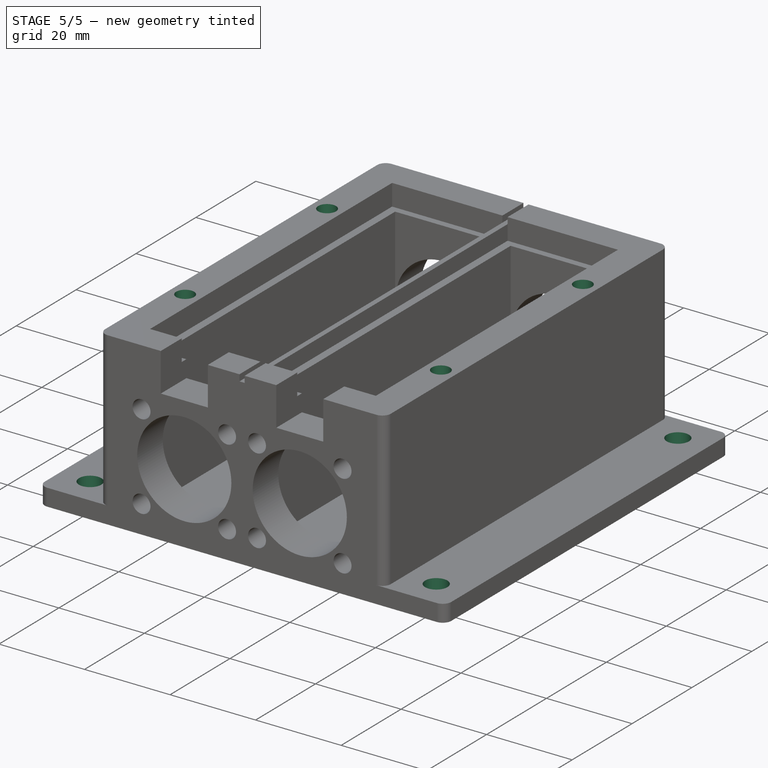
[diagram: stage 5 of 5 — iso view after this stage's code; geometry added in this stage tinted green]
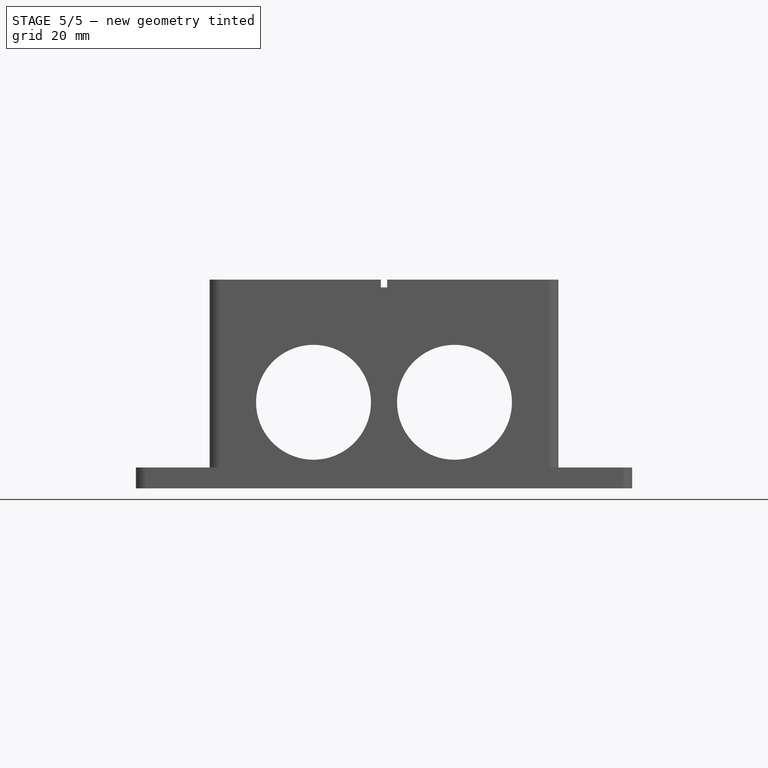
[diagram: stage 5 of 5 — front view after this stage's code; geometry added in this stage tinted green]
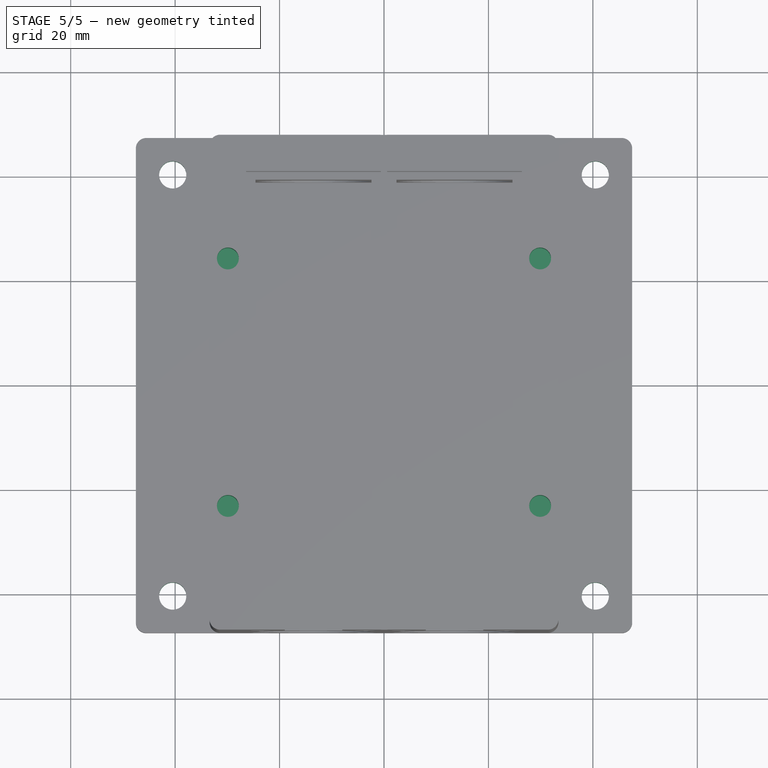
[diagram: stage 5 of 5 — top view after this stage's code; geometry added in this stage tinted green]
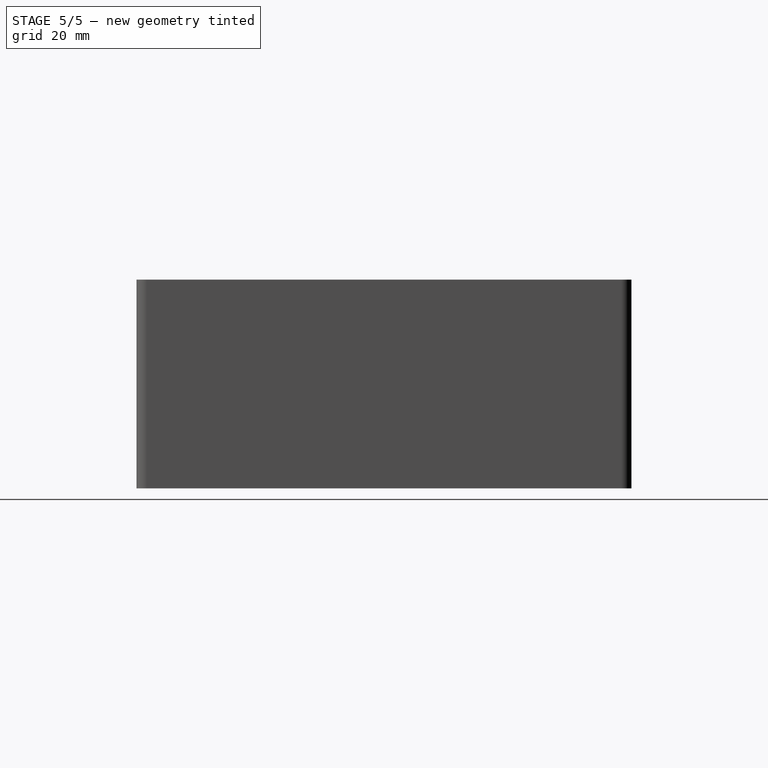
[diagram: stage 5 of 5 — right view after this stage's code; geometry added in this stage tinted green]
FEATURE [PartDesign::Pocket] Pocket006  label="BaseFlangeMountHolePocket"
  BaseFeature = -> Mirrored006
  Direction = (0,0,-1)
  Length = 5
  Length2 = 5
  Profile = -> Sketch009
  ReferenceAxis = -> Sketch009 [N_Axis]
  Refine = true
  Reversed = true
  Suppressed = false
  Type = 1
FEATURE [PartDesign::Pocket] Pocket005  label="TopMountHolePocket"
  BaseFeature = -> Pocket006
  Direction = (0,0,-1)
  Length = 7
  Length2 = 5
  Profile = -> Sketch008
  ReferenceAxis = -> Sketch008 [N_Axis]
  Refine = true
  Suppressed = false
  Type = 0
  expr: Length = Spreadsheet.top_mount_hole_insert_depth
FEATURE [PartDesign::MultiTransform] MultiTransform  label="TopMountHoleMultiTransform"
  BaseFeature = -> Pocket005
  Originals = -> [Pocket005]
  Refine = true
  Suppressed = false
  TransformMode = 0
  Transformations = -> [Mirrored004,Mirrored005]
FEATURE [PartDesign::Body] Body
  AllowCompound = false
  Group = -> [Sketch,Pad,DatumPlane,Sketch002,Sketch007,Pad001,Pocket001,Sketch003,Pocket,Mirrored,DatumPlane001,Sketch004,Pocket002,Mirrored001,DatumPlane002,Sketch005,Pocket003,Mirrored002,Sketch006,Pocket004,Mirrored003,Sketch008,Sketch009,Sketch010,Pocket007,Mirrored006,Pocket006,Pocket005,MultiTransform,Mirrored004,Mirrored005]
  Origin = -> Origin
  Tip = -> MultiTransform
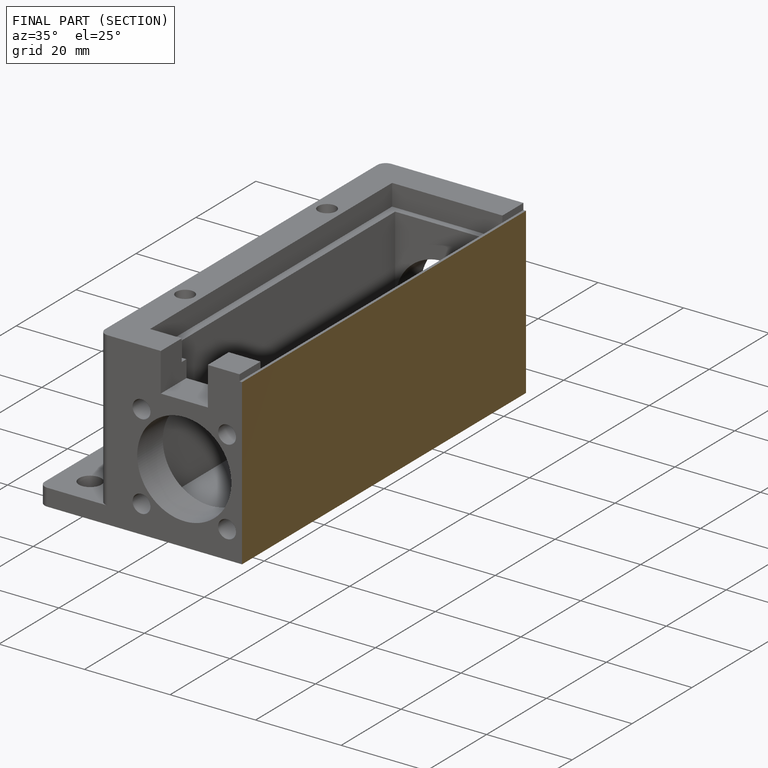
[diagram: finished part — half-section view (interior)]
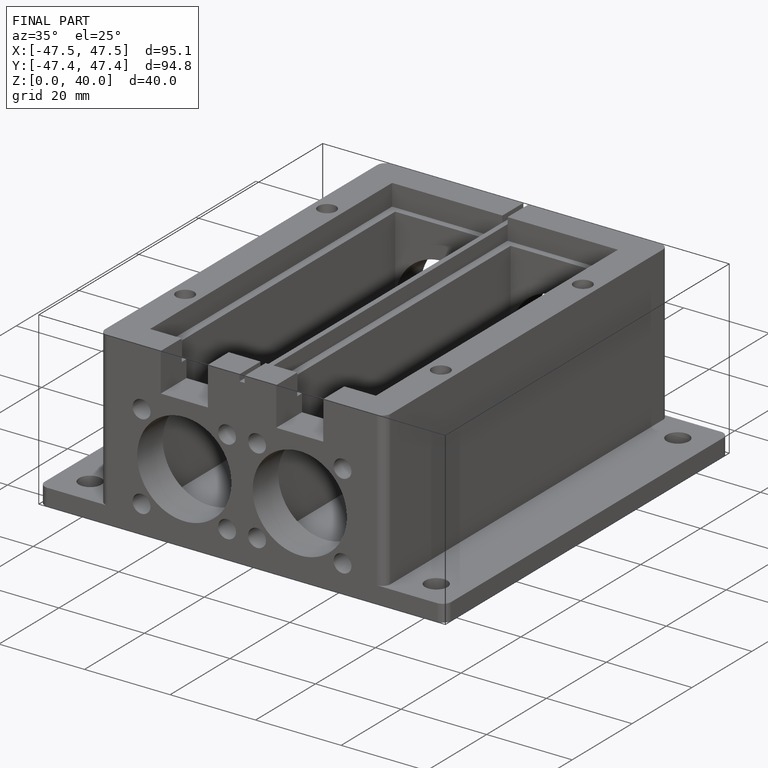
[diagram: finished part — iso view with bounding-box wireframe]
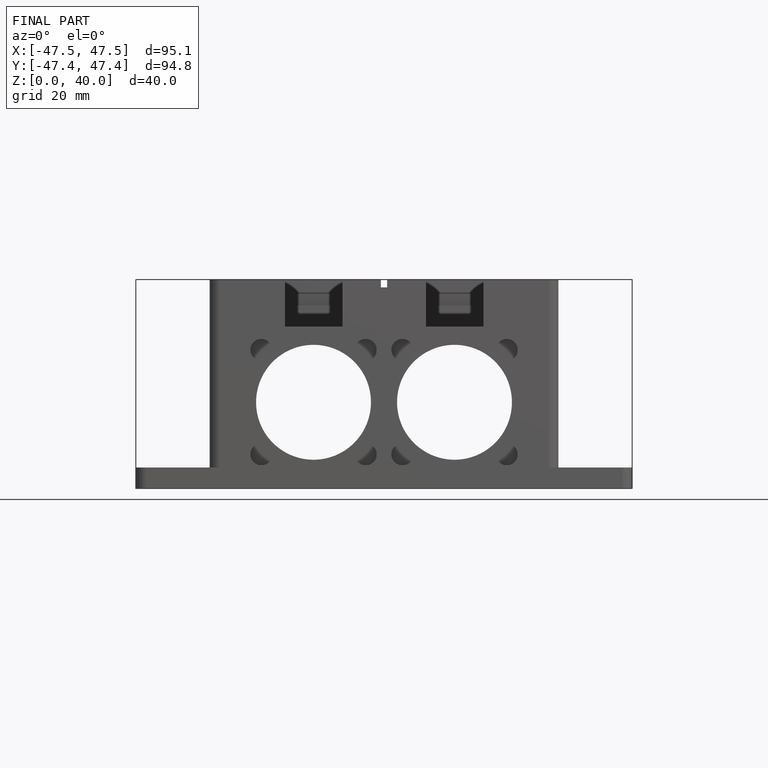
[diagram: finished part — front view with bounding-box wireframe]
